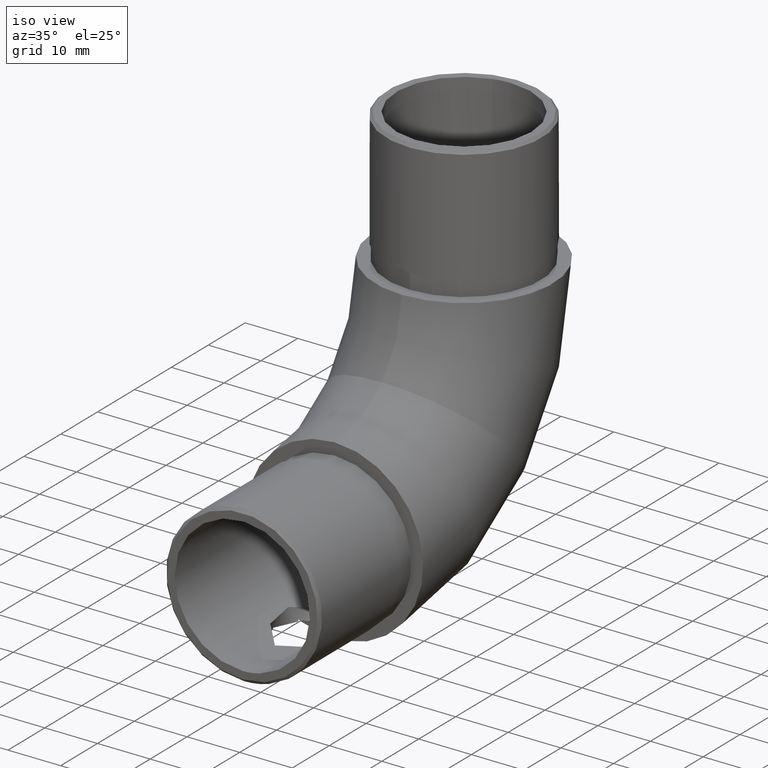
[diagram: clean part render]
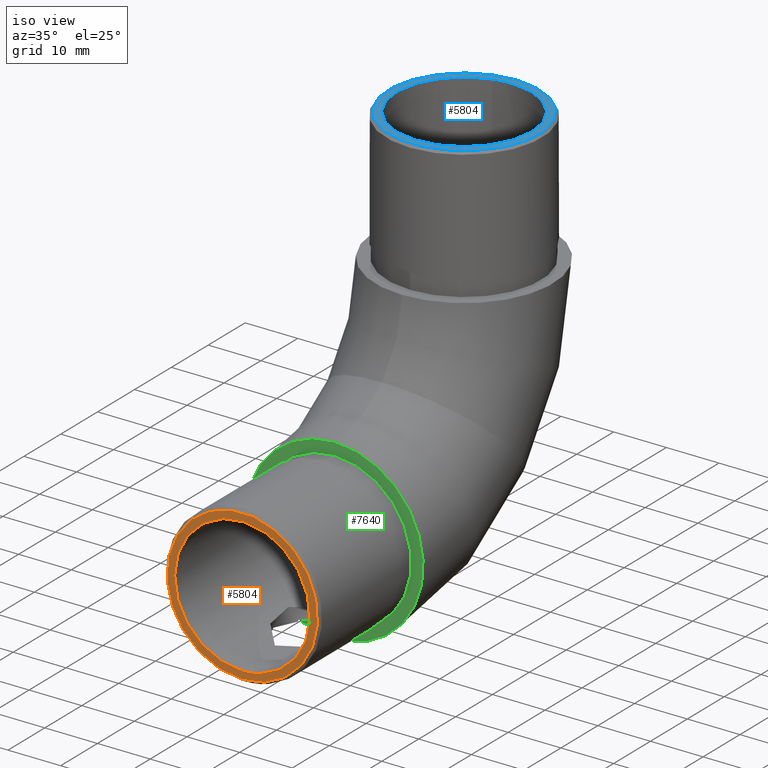
[diagram: same view with three faces highlighted in distinct colors, each labeled with its STEP entity id]
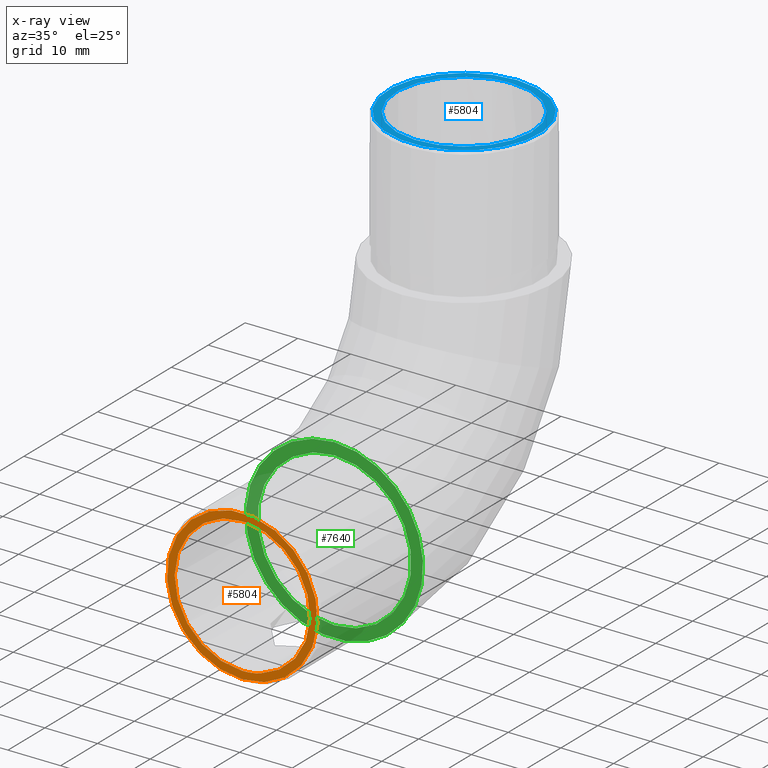
[diagram: x-ray of the same camera — body ghosted, the three highlighted faces saturated]
A machine part, iso view with three faces highlighted in distinct colors.
The next image is the same camera in x-ray (body ghosted, the three faces saturated) — at least one of them is partly hidden behind the body in this view.
Their STEP definitions:

[orange] entity #5804 — the highlighted planar face has unit normal (0, -1, 0).
#775 = DIRECTION ( 'NONE',  ( 0.0000000000000000000, 0.0000000000000000000, -1.000000000000000000 ) ) ;
#1447 = AXIS2_PLACEMENT_3D ( 'NONE', #7666, #14645, #5192 ) ;
#2277 = DIRECTION ( 'NONE',  ( 0.0000000000000000000, -1.000000000000000000, 0.0000000000000000000 ) ) ;
#2714 = VERTEX_POINT ( 'NONE', #9468 ) ;
#2933 = DIRECTION ( 'NONE',  ( 0.0000000000000000000, -1.000000000000000000, 0.0000000000000000000 ) ) ;
#3824 = VERTEX_POINT ( 'NONE', #4719 ) ;
#4181 = CIRCLE ( 'NONE', #1447, 12.85000000000000000 ) ;
#4562 = DIRECTION ( 'NONE',  ( 0.0000000000000000000, -0.0000000000000000000, -1.000000000000000000 ) ) ;
#4719 = CARTESIAN_POINT ( 'NONE',  ( 0.0000000000000000000, -24.99999999999999600, -14.30000000000001500 ) ) ;
#5192 = DIRECTION ( 'NONE',  ( 0.0000000000000000000, 0.0000000000000000000, -1.000000000000000000 ) ) ;
#5557 = EDGE_CURVE ( 'NONE', #2714, #2714, #4181, .T. ) ;
#5804 = ADVANCED_FACE ( 'NONE', ( #10883, #6230 ), #6854, .T. ) ;
#6230 = FACE_BOUND ( 'NONE', #12374, .T. ) ;
#6854 = PLANE ( 'NONE',  #14737 ) ;
#7666 = CARTESIAN_POINT ( 'NONE',  ( 0.0000000000000000000, -24.99999999999999600, 0.0000000000000000000 ) ) ;
#8096 = EDGE_LOOP ( 'NONE', ( #11861 ) ) ;
#9468 = CARTESIAN_POINT ( 'NONE',  ( 0.0000000000000000000, -24.99999999999999600, -12.85000000000000000 ) ) ;
#10883 = FACE_OUTER_BOUND ( 'NONE', #8096, .T. ) ;
#11713 = CARTESIAN_POINT ( 'NONE',  ( 0.0000000000000000000, -24.99999999999999600, 0.0000000000000000000 ) ) ;
#11757 = AXIS2_PLACEMENT_3D ( 'NONE', #13712, #2933, #775 ) ;
#11861 = ORIENTED_EDGE ( 'NONE', *, *, #13922, .T. ) ;
#12374 = EDGE_LOOP ( 'NONE', ( #13369 ) ) ;
#13326 = CIRCLE ( 'NONE', #11757, 14.30000000000001500 ) ;
#13369 = ORIENTED_EDGE ( 'NONE', *, *, #5557, .F. ) ;
#13712 = CARTESIAN_POINT ( 'NONE',  ( 0.0000000000000000000, -24.99999999999999600, 0.0000000000000000000 ) ) ;
#13922 = EDGE_CURVE ( 'NONE', #3824, #3824, #13326, .T. ) ;
#14645 = DIRECTION ( 'NONE',  ( 0.0000000000000000000, -1.000000000000000000, 0.0000000000000000000 ) ) ;
#14737 = AXIS2_PLACEMENT_3D ( 'NONE', #11713, #2277, #4562 ) ;

[blue] entity #5804 — the highlighted planar face has unit normal (-0, 0, 1).
#775 = DIRECTION ( 'NONE',  ( 0.0000000000000000000, 0.0000000000000000000, -1.000000000000000000 ) ) ;
#1447 = AXIS2_PLACEMENT_3D ( 'NONE', #7666, #14645, #5192 ) ;
#2277 = DIRECTION ( 'NONE',  ( 0.0000000000000000000, -1.000000000000000000, 0.0000000000000000000 ) ) ;
#2714 = VERTEX_POINT ( 'NONE', #9468 ) ;
#2933 = DIRECTION ( 'NONE',  ( 0.0000000000000000000, -1.000000000000000000, 0.0000000000000000000 ) ) ;
#3824 = VERTEX_POINT ( 'NONE', #4719 ) ;
#4181 = CIRCLE ( 'NONE', #1447, 12.85000000000000000 ) ;
#4562 = DIRECTION ( 'NONE',  ( 0.0000000000000000000, -0.0000000000000000000, -1.000000000000000000 ) ) ;
#4719 = CARTESIAN_POINT ( 'NONE',  ( 0.0000000000000000000, -24.99999999999999600, -14.30000000000001500 ) ) ;
#5192 = DIRECTION ( 'NONE',  ( 0.0000000000000000000, 0.0000000000000000000, -1.000000000000000000 ) ) ;
#5557 = EDGE_CURVE ( 'NONE', #2714, #2714, #4181, .T. ) ;
#5804 = ADVANCED_FACE ( 'NONE', ( #10883, #6230 ), #6854, .T. ) ;
#6230 = FACE_BOUND ( 'NONE', #12374, .T. ) ;
#6854 = PLANE ( 'NONE',  #14737 ) ;
#7666 = CARTESIAN_POINT ( 'NONE',  ( 0.0000000000000000000, -24.99999999999999600, 0.0000000000000000000 ) ) ;
#8096 = EDGE_LOOP ( 'NONE', ( #11861 ) ) ;
#9468 = CARTESIAN_POINT ( 'NONE',  ( 0.0000000000000000000, -24.99999999999999600, -12.85000000000000000 ) ) ;
#10883 = FACE_OUTER_BOUND ( 'NONE', #8096, .T. ) ;
#11713 = CARTESIAN_POINT ( 'NONE',  ( 0.0000000000000000000, -24.99999999999999600, 0.0000000000000000000 ) ) ;
#11757 = AXIS2_PLACEMENT_3D ( 'NONE', #13712, #2933, #775 ) ;
#11861 = ORIENTED_EDGE ( 'NONE', *, *, #13922, .T. ) ;
#12374 = EDGE_LOOP ( 'NONE', ( #13369 ) ) ;
#13326 = CIRCLE ( 'NONE', #11757, 14.30000000000001500 ) ;
#13369 = ORIENTED_EDGE ( 'NONE', *, *, #5557, .F. ) ;
#13712 = CARTESIAN_POINT ( 'NONE',  ( 0.0000000000000000000, -24.99999999999999600, 0.0000000000000000000 ) ) ;
#13922 = EDGE_CURVE ( 'NONE', #3824, #3824, #13326, .T. ) ;
#14645 = DIRECTION ( 'NONE',  ( 0.0000000000000000000, -1.000000000000000000, 0.0000000000000000000 ) ) ;
#14737 = AXIS2_PLACEMENT_3D ( 'NONE', #11713, #2277, #4562 ) ;

[green] entity #7640 — the highlighted planar face has unit normal (0, 1, 0).
#1103 = EDGE_LOOP ( 'NONE', ( #4603 ) ) ;
#1282 = DIRECTION ( 'NONE',  ( 0.0000000000000000000, 1.000000000000000000, 0.0000000000000000000 ) ) ;
#1879 = PLANE ( 'NONE',  #11187 ) ;
#3161 = DIRECTION ( 'NONE',  ( -0.0000000000000000000, -1.000000000000000000, -0.0000000000000000000 ) ) ;
#3211 = DIRECTION ( 'NONE',  ( 0.0000000000000000000, 1.000000000000000000, 0.0000000000000000000 ) ) ;
#4434 = DIRECTION ( 'NONE',  ( 0.0000000000000000000, 0.0000000000000000000, 1.000000000000000000 ) ) ;
#4603 = ORIENTED_EDGE ( 'NONE', *, *, #14124, .F. ) ;
#6573 = AXIS2_PLACEMENT_3D ( 'NONE', #12738, #3161, #4434 ) ;
#7640 = ADVANCED_FACE ( 'NONE', ( #13822, #11425 ), #1879, .F. ) ;
#7693 = DIRECTION ( 'NONE',  ( 0.0000000000000000000, -0.0000000000000000000, 1.000000000000000000 ) ) ;
#7705 = VERTEX_POINT ( 'NONE', #8251 ) ;
#8251 = CARTESIAN_POINT ( 'NONE',  ( 0.0000000000000000000, 0.0000000000000000000, 14.60000000000000100 ) ) ;
#8870 = ORIENTED_EDGE ( 'NONE', *, *, #10771, .F. ) ;
#9939 = EDGE_LOOP ( 'NONE', ( #8870 ) ) ;
#10166 = CIRCLE ( 'NONE', #12238, 16.85000000000000100 ) ;
#10271 = CIRCLE ( 'NONE', #6573, 14.60000000000000100 ) ;
#10303 = CARTESIAN_POINT ( 'NONE',  ( 0.0000000000000000000, 0.0000000000000000000, 0.0000000000000000000 ) ) ;
#10771 = EDGE_CURVE ( 'NONE', #7705, #7705, #10271, .T. ) ;
#11187 = AXIS2_PLACEMENT_3D ( 'NONE', #10303, #3211, #7693 ) ;
#11425 = FACE_BOUND ( 'NONE', #9939, .T. ) ;
#12238 = AXIS2_PLACEMENT_3D ( 'NONE', #15322, #1282, #12879 ) ;
#12738 = CARTESIAN_POINT ( 'NONE',  ( 0.0000000000000000000, 0.0000000000000000000, 0.0000000000000000000 ) ) ;
#12879 = DIRECTION ( 'NONE',  ( 0.0000000000000000000, 0.0000000000000000000, 1.000000000000000000 ) ) ;
#13822 = FACE_OUTER_BOUND ( 'NONE', #1103, .T. ) ;
#14124 = EDGE_CURVE ( 'NONE', #15160, #15160, #10166, .T. ) ;
#14134 = CARTESIAN_POINT ( 'NONE',  ( 0.0000000000000000000, 0.0000000000000000000, 16.85000000000000100 ) ) ;
#15160 = VERTEX_POINT ( 'NONE', #14134 ) ;
#15322 = CARTESIAN_POINT ( 'NONE',  ( 0.0000000000000000000, 0.0000000000000000000, 0.0000000000000000000 ) ) ;